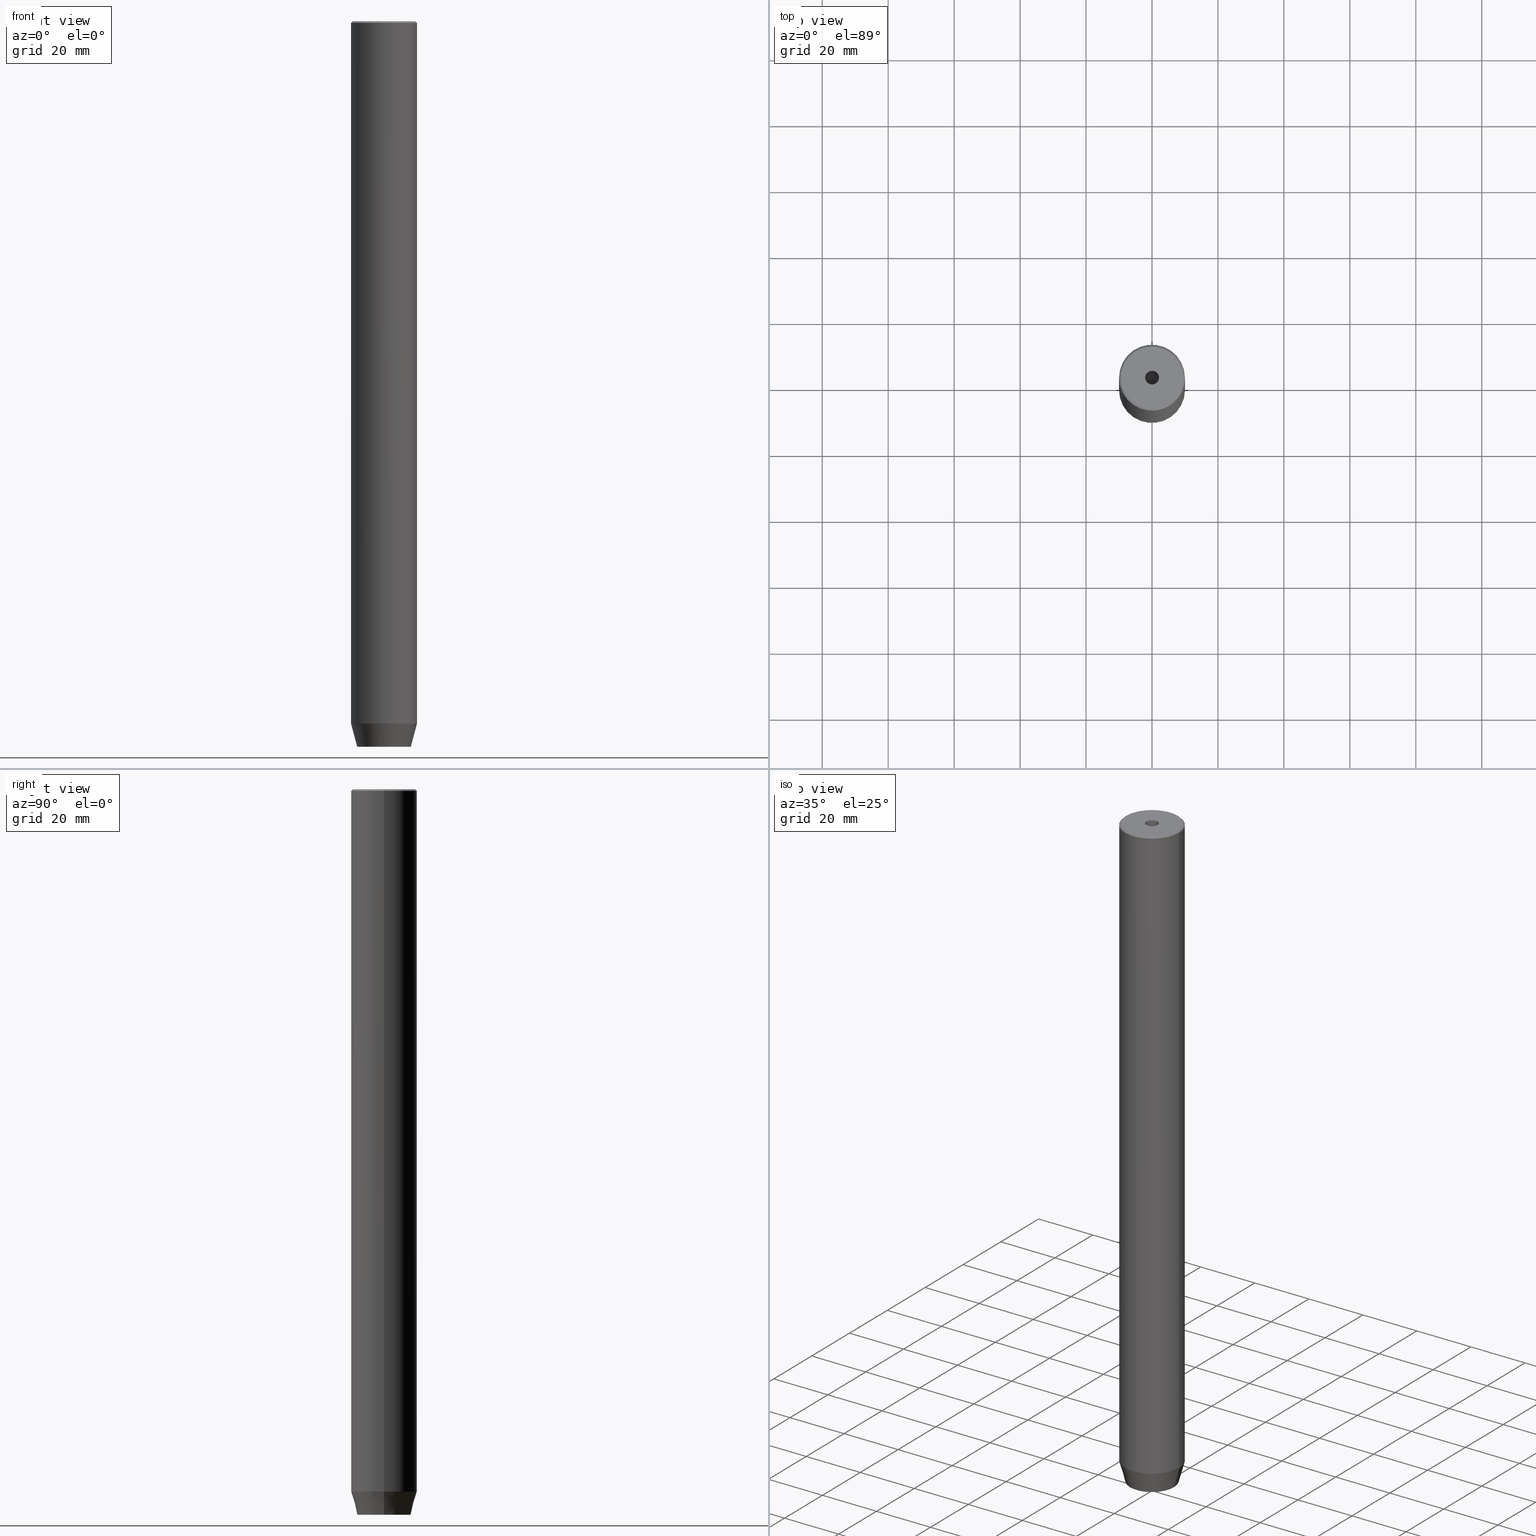
[diagram: canonical four-view strip — front | top / right | iso, engineering-drawing reading convention]
A machine part, canonical four-view strip (front | top / right | iso — engineering-drawing reading convention). The complete STEP part file that produces these views, byte-faithful:
ISO-10303-21;
HEADER;
FILE_DESCRIPTION (( 'STEP AP203' ),
    '1' );
FILE_NAME ('bc1d.STEP',
    '2024-01-02T19:03:26',
    ( '' ),
    ( '' ),
    'SwSTEP 2.0',
    'SolidWorks 2019',
    '' );
FILE_SCHEMA (( 'CONFIG_CONTROL_DESIGN' ));
ENDSEC;

DATA;
#1 = DIRECTION ( 'NONE',  ( 0.7071067811865230368, 8.659560562354633338E-17, -0.7071067811865721087 ) ) ;
#2 = MECHANICAL_CONTEXT ( 'NONE', #475, 'mechanical' ) ;
#3 = EDGE_CURVE ( 'NONE', #140, #437, #5, .T. ) ;
#4 = VERTEX_POINT ( 'NONE', #357 ) ;
#5 = LINE ( 'NONE', #407, #299 ) ;
#6 = APPLICATION_PROTOCOL_DEFINITION ( 'international standard', 'config_control_design', 1994, #365 ) ;
#7 = ADVANCED_FACE ( 'NONE', ( #464, #180 ), #12, .T. ) ;
#8 = ORIENTED_EDGE ( 'NONE', *, *, #367, .T. ) ;
#9 = CONICAL_SURFACE ( 'NONE', #338, 2.099999999999995648, 1.029744258676651647 ) ;
#10 = DIRECTION ( 'NONE',  ( -0.8660254037844385966, 0.5000000000000001110, 0.000000000000000000 ) ) ;
#11 = CONICAL_SURFACE ( 'NONE', #306, 10.00000000000000000, 0.2617993877991497409 ) ;
#12 = PLANE ( 'NONE',  #403 ) ;
#13 = CIRCLE ( 'NONE', #237, 2.099999999999998757 ) ;
#14 = AXIS2_PLACEMENT_3D ( 'NONE', #565, #454, #262 ) ;
#15 = CARTESIAN_POINT ( 'NONE',  ( 0.000000000000000000, 0.000000000000000000, -220.0000000000000000 ) ) ;
#16 = DIRECTION ( 'NONE',  ( 1.000000000000000000, 0.000000000000000000, 0.000000000000000000 ) ) ;
#17 = VERTEX_POINT ( 'NONE', #364 ) ;
#18 = EDGE_LOOP ( 'NONE', ( #190, #160, #452, #194 ) ) ;
#19 =( NAMED_UNIT ( * ) PLANE_ANGLE_UNIT ( ) SI_UNIT ( $, .RADIAN. ) );
#20 = DIRECTION ( 'NONE',  ( 1.000000000000000000, 0.000000000000000000, 0.000000000000000000 ) ) ;
#21 = VERTEX_POINT ( 'NONE', #259 ) ;
#22 = DIRECTION ( 'NONE',  ( -0.000000000000000000, -0.000000000000000000, 1.000000000000000000 ) ) ;
#23 = ORIENTED_EDGE ( 'NONE', *, *, #525, .T. ) ;
#24 = DIRECTION ( 'NONE',  ( -0.000000000000000000, -0.000000000000000000, 1.000000000000000000 ) ) ;
#25 = APPROVAL_ROLE ( '' ) ;
#26 = CC_DESIGN_PERSON_AND_ORGANIZATION_ASSIGNMENT ( #266, #99, ( #514 ) ) ;
#27 = FACE_OUTER_BOUND ( 'NONE', #450, .T. ) ;
#28 = SHAPE_DEFINITION_REPRESENTATION ( #130, #546 ) ;
#29 = ORIENTED_EDGE ( 'NONE', *, *, #272, .T. ) ;
#30 = CARTESIAN_POINT ( 'NONE',  ( 0.000000000000000000, 0.000000000000000000, 0.000000000000000000 ) ) ;
#31 = VECTOR ( 'NONE', #77, 1000.000000000000114 ) ;
#32 =( GEOMETRIC_REPRESENTATION_CONTEXT ( 3 ) GLOBAL_UNCERTAINTY_ASSIGNED_CONTEXT ( ( #240 ) ) GLOBAL_UNIT_ASSIGNED_CONTEXT ( ( #471, #19, #477 ) ) REPRESENTATION_CONTEXT ( 'NONE', 'WORKASPACE' ) );
#33 = CARTESIAN_POINT ( 'NONE',  ( 4.000000000000000000, -2.309401076758502480, -217.2000000000000171 ) ) ;
#34 = DESIGN_CONTEXT ( 'detailed design', #365, 'design' ) ;
#35 = PRODUCT_RELATED_PRODUCT_CATEGORY ( 'detail', '', ( #575 ) ) ;
#36 = DIRECTION ( 'NONE',  ( -0.8660254037844384856, 0.5000000000000002220, 0.000000000000000000 ) ) ;
#37 = ADVANCED_FACE ( 'NONE', ( #461 ), #551, .F. ) ;
#38 = FACE_OUTER_BOUND ( 'NONE', #18, .T. ) ;
#39 = AXIS2_PLACEMENT_3D ( 'NONE', #64, #228, #20 ) ;
#40 = LOCAL_TIME ( 20, 3, 26.00000000000000000, #381 ) ;
#41 = DIRECTION ( 'NONE',  ( -0.8660254037844384856, -0.5000000000000002220, 0.000000000000000000 ) ) ;
#42 = CARTESIAN_POINT ( 'NONE',  ( 0.000000000000000000, 0.000000000000000000, 0.000000000000000000 ) ) ;
#43 = EDGE_CURVE ( 'NONE', #179, #289, #142, .T. ) ;
#44 = CARTESIAN_POINT ( 'NONE',  ( 2.099999999999996980, 0.000000000000000000, 0.000000000000000000 ) ) ;
#45 = CIRCLE ( 'NONE', #504, 2.099999999999995648 ) ;
#46 = VERTEX_POINT ( 'NONE', #95 ) ;
#47 = PRODUCT_DEFINITION ( 'NEZN�M�', '', #514, #34 ) ;
#48 = VECTOR ( 'NONE', #512, 1000.000000000000000 ) ;
#49 = DIRECTION ( 'NONE',  ( 0.000000000000000000, 0.000000000000000000, -1.000000000000000000 ) ) ;
#50 = AXIS2_PLACEMENT_3D ( 'NONE', #482, #578, #246 ) ;
#51 = LOCAL_TIME ( 20, 3, 26.00000000000000000, #302 ) ;
#52 = PERSON_AND_ORGANIZATION ( #521, #275 ) ;
#53 = ORIENTED_EDGE ( 'NONE', *, *, #408, .T. ) ;
#54 = EDGE_CURVE ( 'NONE', #434, #17, #62, .T. ) ;
#55 = PERSON_AND_ORGANIZATION_ROLE ( 'design_owner' ) ;
#56 = CC_DESIGN_PERSON_AND_ORGANIZATION_ASSIGNMENT ( #466, #312, ( #514 ) ) ;
#57 = LINE ( 'NONE', #96, #468 ) ;
#58 = CARTESIAN_POINT ( 'NONE',  ( 0.000000000000000000, 0.000000000000000000, 0.000000000000000000 ) ) ;
#59 = DIRECTION ( 'NONE',  ( -0.5000000000000003331, -0.8660254037844385966, 0.000000000000000000 ) ) ;
#60 = CARTESIAN_POINT ( 'NONE',  ( 2.168404344971008868E-16, 4.618802153517006737, -220.0000000000000000 ) ) ;
#61 = AXIS2_PLACEMENT_3D ( 'NONE', #524, #108, #283 ) ;
#62 = LINE ( 'NONE', #416, #185 ) ;
#63 = LOCAL_TIME ( 20, 3, 26.00000000000000000, #258 ) ;
#64 = CARTESIAN_POINT ( 'NONE',  ( 0.000000000000000000, 0.000000000000000000, -220.0000000000000000 ) ) ;
#65 = DIRECTION ( 'NONE',  ( -0.000000000000000000, -0.000000000000000000, 1.000000000000000000 ) ) ;
#66 = CARTESIAN_POINT ( 'NONE',  ( -2.099999999999996980, 2.571758278209438013E-16, 0.000000000000000000 ) ) ;
#67 = ORIENTED_EDGE ( 'NONE', *, *, #408, .F. ) ;
#68 = CYLINDRICAL_SURFACE ( 'NONE', #417, 2.099999999999996980 ) ;
#69 = LINE ( 'NONE', #201, #225 ) ;
#70 = EDGE_LOOP ( 'NONE', ( #326, #411 ) ) ;
#71 = CALENDAR_DATE ( 2024, 2, 1 ) ;
#72 = ORIENTED_EDGE ( 'NONE', *, *, #303, .F. ) ;
#73 = VECTOR ( 'NONE', #496, 1000.000000000000000 ) ;
#74 = EDGE_LOOP ( 'NONE', ( #506, #125, #429 ) ) ;
#75 = EDGE_CURVE ( 'NONE', #558, #91, #254, .T. ) ;
#76 = CIRCLE ( 'NONE', #433, 9.500000000000008882 ) ;
#77 = DIRECTION ( 'NONE',  ( 0.8571673007021108903, 0.000000000000000000, 0.5150380749100565980 ) ) ;
#78 = EDGE_CURVE ( 'NONE', #236, #91, #488, .T. ) ;
#79 = DIRECTION ( 'NONE',  ( -1.000000000000000000, 0.000000000000000000, 0.000000000000000000 ) ) ;
#80 = CARTESIAN_POINT ( 'NONE',  ( 10.00000000000000000, 0.000000000000000000, -0.5000000000000265343 ) ) ;
#81 = LINE ( 'NONE', #447, #351 ) ;
#82 = DIRECTION ( 'NONE',  ( -0.000000000000000000, -0.000000000000000000, 1.000000000000000000 ) ) ;
#83 = ADVANCED_FACE ( 'NONE', ( #568 ), #9, .F. ) ;
#84 = CIRCLE ( 'NONE', #513, 8.124355652982130138 ) ;
#85 = LOCAL_TIME ( 20, 3, 26.00000000000000000, #199 ) ;
#86 = CARTESIAN_POINT ( 'NONE',  ( 4.000000000000000000, 2.309401076758503368, -217.2000000000000171 ) ) ;
#87 = ORIENTED_EDGE ( 'NONE', *, *, #54, .F. ) ;
#88 = ADVANCED_FACE ( 'NONE', ( #426 ), #68, .F. ) ;
#89 = VERTEX_POINT ( 'NONE', #572 ) ;
#90 = ORIENTED_EDGE ( 'NONE', *, *, #547, .F. ) ;
#91 = VERTEX_POINT ( 'NONE', #530 ) ;
#92 = ORIENTED_EDGE ( 'NONE', *, *, #3, .T. ) ;
#93 = ORIENTED_EDGE ( 'NONE', *, *, #318, .T. ) ;
#94 = EDGE_CURVE ( 'NONE', #140, #89, #171, .T. ) ;
#95 = CARTESIAN_POINT ( 'NONE',  ( 0.000000000000000000, 4.618802153517006737, -217.2000000000000171 ) ) ;
#96 = CARTESIAN_POINT ( 'NONE',  ( -2.000000000000000000, 3.464101615137754830, -217.2000000000000171 ) ) ;
#97 = CARTESIAN_POINT ( 'NONE',  ( 0.000000000000000000, 0.000000000000000000, -212.9999999999999716 ) ) ;
#98 = ORIENTED_EDGE ( 'NONE', *, *, #498, .F. ) ;
#99 = PERSON_AND_ORGANIZATION_ROLE ( 'creator' ) ;
#100 = DIRECTION ( 'NONE',  ( -1.000000000000000000, 0.000000000000000000, -0.000000000000000000 ) ) ;
#101 = ORIENTED_EDGE ( 'NONE', *, *, #221, .F. ) ;
#102 = AXIS2_PLACEMENT_3D ( 'NONE', #167, #79, #121 ) ;
#103 = ORIENTED_EDGE ( 'NONE', *, *, #576, .F. ) ;
#104 = DIRECTION ( 'NONE',  ( 1.000000000000000000, 0.000000000000000000, 0.000000000000000000 ) ) ;
#105 = ORIENTED_EDGE ( 'NONE', *, *, #449, .T. ) ;
#106 = DIRECTION ( 'NONE',  ( 0.8660254037844385966, -0.5000000000000001110, 0.000000000000000000 ) ) ;
#107 = APPROVAL_DATE_TIME ( #153, #166 ) ;
#108 = DIRECTION ( 'NONE',  ( -0.000000000000000000, -0.000000000000000000, 1.000000000000000000 ) ) ;
#109 = ORIENTED_EDGE ( 'NONE', *, *, #94, .F. ) ;
#110 = CARTESIAN_POINT ( 'NONE',  ( 2.000000000000000444, 3.464101615137754386, -217.2000000000000171 ) ) ;
#111 = VERTEX_POINT ( 'NONE', #439 ) ;
#112 = DIRECTION ( 'NONE',  ( -0.000000000000000000, -0.000000000000000000, 1.000000000000000000 ) ) ;
#113 = FACE_OUTER_BOUND ( 'NONE', #70, .T. ) ;
#114 = ORIENTED_EDGE ( 'NONE', *, *, #501, .T. ) ;
#115 = DIRECTION ( 'NONE',  ( 1.000000000000000000, 0.000000000000000000, 0.000000000000000000 ) ) ;
#116 = ADVANCED_FACE ( 'NONE', ( #536 ), #120, .F. ) ;
#117 = AXIS2_PLACEMENT_3D ( 'NONE', #451, #401, #241 ) ;
#118 = CARTESIAN_POINT ( 'NONE',  ( -10.00000000000000000, 1.224646799147353256E-15, 0.000000000000000000 ) ) ;
#119 = VERTEX_POINT ( 'NONE', #192 ) ;
#120 = PLANE ( 'NONE',  #465 ) ;
#121 = DIRECTION ( 'NONE',  ( 0.000000000000000000, 0.000000000000000000, 1.000000000000000000 ) ) ;
#122 = LINE ( 'NONE', #296, #582 ) ;
#123 = DIRECTION ( 'NONE',  ( 0.000000000000000000, 1.000000000000000000, 0.000000000000000000 ) ) ;
#124 = CARTESIAN_POINT ( 'NONE',  ( -2.000000000000000888, -3.464101615137754386, -217.2000000000000171 ) ) ;
#125 = ORIENTED_EDGE ( 'NONE', *, *, #221, .T. ) ;
#126 = CARTESIAN_POINT ( 'NONE',  ( -4.000000000000000000, -2.309401076758503368, -217.2000000000000171 ) ) ;
#127 = VECTOR ( 'NONE', #533, 1000.000000000000000 ) ;
#128 = CARTESIAN_POINT ( 'NONE',  ( -4.000000000000000000, -2.309401076758503368, -217.2000000000000171 ) ) ;
#129 = AXIS2_PLACEMENT_3D ( 'NONE', #324, #49, #16 ) ;
#130 = PRODUCT_DEFINITION_SHAPE ( 'NONE', 'NONE',  #47 ) ;
#131 = LINE ( 'NONE', #44, #73 ) ;
#132 = DIRECTION ( 'NONE',  ( 0.000000000000000000, 0.000000000000000000, -1.000000000000000000 ) ) ;
#133 = ADVANCED_FACE ( 'NONE', ( #376 ), #414, .F. ) ;
#134 = APPROVAL_ROLE ( '' ) ;
#135 = ADVANCED_FACE ( 'NONE', ( #548 ), #270, .F. ) ;
#136 = CIRCLE ( 'NONE', #117, 10.00000000000000000 ) ;
#137 = ORIENTED_EDGE ( 'NONE', *, *, #576, .T. ) ;
#138 = ORIENTED_EDGE ( 'NONE', *, *, #399, .T. ) ;
#139 = DIRECTION ( 'NONE',  ( 1.000000000000000000, 0.000000000000000000, 0.000000000000000000 ) ) ;
#140 = VERTEX_POINT ( 'NONE', #453 ) ;
#141 = CC_DESIGN_PERSON_AND_ORGANIZATION_ASSIGNMENT ( #52, #412, ( #317 ) ) ;
#142 = LINE ( 'NONE', #315, #48 ) ;
#143 = VERTEX_POINT ( 'NONE', #145 ) ;
#144 = DIRECTION ( 'NONE',  ( 1.000000000000000000, 0.000000000000000000, 0.000000000000000000 ) ) ;
#145 = CARTESIAN_POINT ( 'NONE',  ( -4.000000000000000000, -2.309401076758503368, -220.0000000000000000 ) ) ;
#146 = DIRECTION ( 'NONE',  ( 0.000000000000000000, 1.000000000000000000, 0.000000000000000000 ) ) ;
#147 = ADVANCED_FACE ( 'NONE', ( #222 ), #309, .F. ) ;
#148 = DIRECTION ( 'NONE',  ( -0.8660254037844384856, 0.5000000000000002220, 0.000000000000000000 ) ) ;
#149 = VERTEX_POINT ( 'NONE', #508 ) ;
#150 = LINE ( 'NONE', #110, #330 ) ;
#151 = AXIS2_PLACEMENT_3D ( 'NONE', #424, #22, #243 ) ;
#152 = EDGE_LOOP ( 'NONE', ( #109, #92, #310, #523 ) ) ;
#153 = DATE_AND_TIME ( #71, #40 ) ;
#154 = CARTESIAN_POINT ( 'NONE',  ( -2.000000000000000888, -3.464101615137754386, -220.0000000000000000 ) ) ;
#155 = EDGE_CURVE ( 'NONE', #437, #336, #136, .T. ) ;
#156 = EDGE_LOOP ( 'NONE', ( #311, #257, #537, #561 ) ) ;
#157 = DIRECTION ( 'NONE',  ( 0.5000000000000003331, -0.8660254037844385966, 0.000000000000000000 ) ) ;
#158 = LINE ( 'NONE', #560, #457 ) ;
#159 = AXIS2_PLACEMENT_3D ( 'NONE', #178, #181, #406 ) ;
#160 = ORIENTED_EDGE ( 'NONE', *, *, #359, .T. ) ;
#161 = CARTESIAN_POINT ( 'NONE',  ( 0.000000000000000000, 0.000000000000000000, 0.000000000000000000 ) ) ;
#162 = AXIS2_PLACEMENT_3D ( 'NONE', #231, #519, #100 ) ;
#163 = FACE_OUTER_BOUND ( 'NONE', #187, .T. ) ;
#164 = DIRECTION ( 'NONE',  ( 0.000000000000000000, -1.000000000000000000, 0.000000000000000000 ) ) ;
#165 = EDGE_CURVE ( 'NONE', #149, #236, #45, .T. ) ;
#166 = APPROVAL ( #531, 'NEUR�EN�' ) ;
#167 = CARTESIAN_POINT ( 'NONE',  ( -4.000000000000000000, 0.000000000000000000, -217.2000000000000171 ) ) ;
#168 = LINE ( 'NONE', #128, #186 ) ;
#169 = LINE ( 'NONE', #86, #316 ) ;
#170 = FACE_OUTER_BOUND ( 'NONE', #479, .T. ) ;
#171 = CIRCLE ( 'NONE', #391, 9.500000000000008882 ) ;
#172 = CONICAL_SURFACE ( 'NONE', #263, 2.099999999999995648, 1.029744258676651647 ) ;
#173 = DIRECTION ( 'NONE',  ( -0.000000000000000000, -0.000000000000000000, -1.000000000000000000 ) ) ;
#174 = EDGE_CURVE ( 'NONE', #319, #21, #84, .T. ) ;
#175 = EDGE_LOOP ( 'NONE', ( #425, #559, #8, #404, #93, #389 ) ) ;
#176 = CIRCLE ( 'NONE', #520, 2.099999999999995648 ) ;
#177 = DATE_TIME_ROLE ( 'creation_date' ) ;
#178 = CARTESIAN_POINT ( 'NONE',  ( -2.000000000000000000, 3.464101615137754830, -217.2000000000000171 ) ) ;
#179 = VERTEX_POINT ( 'NONE', #60 ) ;
#180 = FACE_OUTER_BOUND ( 'NONE', #528, .T. ) ;
#181 = DIRECTION ( 'NONE',  ( -0.5000000000000000000, 0.8660254037844387076, 0.000000000000000000 ) ) ;
#182 = VERTEX_POINT ( 'NONE', #33 ) ;
#183 = DIRECTION ( 'NONE',  ( -0.000000000000000000, -0.000000000000000000, 1.000000000000000000 ) ) ;
#184 = PERSON_AND_ORGANIZATION ( #521, #275 ) ;
#185 = VECTOR ( 'NONE', #146, 1000.000000000000000 ) ;
#186 = VECTOR ( 'NONE', #497, 1000.000000000000000 ) ;
#187 = EDGE_LOOP ( 'NONE', ( #53, #72, #87, #138 ) ) ;
#188 = CIRCLE ( 'NONE', #129, 10.00000000000000000 ) ;
#189 = FACE_OUTER_BOUND ( 'NONE', #175, .T. ) ;
#190 = ORIENTED_EDGE ( 'NONE', *, *, #213, .T. ) ;
#191 = EDGE_CURVE ( 'NONE', #182, #119, #422, .T. ) ;
#192 = CARTESIAN_POINT ( 'NONE',  ( 4.000000000000000000, -2.309401076758502480, -220.0000000000000000 ) ) ;
#193 = DIRECTION ( 'NONE',  ( -0.8571673007021108903, 1.049727191138616847E-16, 0.5150380749100565980 ) ) ;
#194 = ORIENTED_EDGE ( 'NONE', *, *, #272, .F. ) ;
#195 = ORIENTED_EDGE ( 'NONE', *, *, #388, .F. ) ;
#196 = DIRECTION ( 'NONE',  ( -0.000000000000000000, -0.000000000000000000, 1.000000000000000000 ) ) ;
#197 = VECTOR ( 'NONE', #298, 1000.000000000000000 ) ;
#198 = APPROVAL_PERSON_ORGANIZATION ( #360, #539, #234 ) ;
#199 = COORDINATED_UNIVERSAL_TIME_OFFSET ( 1, 0, .AHEAD. ) ;
#200 = EDGE_CURVE ( 'NONE', #111, #143, #463, .T. ) ;
#201 = CARTESIAN_POINT ( 'NONE',  ( 10.00000000000000000, 0.000000000000000000, 0.000000000000000000 ) ) ;
#202 = ORIENTED_EDGE ( 'NONE', *, *, #3, .F. ) ;
#203 = CARTESIAN_POINT ( 'NONE',  ( -4.000000000000000000, 2.309401076758503368, -220.0000000000000000 ) ) ;
#204 = ORIENTED_EDGE ( 'NONE', *, *, #501, .F. ) ;
#205 = AXIS2_PLACEMENT_3D ( 'NONE', #42, #393, #209 ) ;
#206 = DIRECTION ( 'NONE',  ( 0.2588190451025210170, 0.000000000000000000, 0.9659258262890680902 ) ) ;
#207 = PERSON_AND_ORGANIZATION_ROLE ( 'creator' ) ;
#208 = LINE ( 'NONE', #343, #127 ) ;
#209 = DIRECTION ( 'NONE',  ( -1.000000000000000000, 0.000000000000000000, 0.000000000000000000 ) ) ;
#210 = LINE ( 'NONE', #440, #197 ) ;
#211 = ADVANCED_FACE ( 'NONE', ( #189 ), #323, .T. ) ;
#212 = CARTESIAN_POINT ( 'NONE',  ( 4.336808689942017736E-16, -4.618802153517006737, -217.2000000000000171 ) ) ;
#213 = EDGE_CURVE ( 'NONE', #4, #375, #553, .T. ) ;
#214 = ORIENTED_EDGE ( 'NONE', *, *, #233, .F. ) ;
#215 = DATE_AND_TIME ( #308, #51 ) ;
#216 = EDGE_CURVE ( 'NONE', #21, #319, #358, .T. ) ;
#217 = AXIS2_PLACEMENT_3D ( 'NONE', #517, #183, #239 ) ;
#218 = CONICAL_SURFACE ( 'NONE', #261, 9.500000000000008882, 0.7853981633974136400 ) ;
#219 = DATE_AND_TIME ( #366, #63 ) ;
#220 = ORIENTED_EDGE ( 'NONE', *, *, #470, .T. ) ;
#221 = EDGE_CURVE ( 'NONE', #567, #236, #321, .T. ) ;
#222 = FACE_OUTER_BOUND ( 'NONE', #307, .T. ) ;
#223 = ORIENTED_EDGE ( 'NONE', *, *, #191, .T. ) ;
#224 = DIRECTION ( 'NONE',  ( 0.8660254037844384856, -0.5000000000000002220, 0.000000000000000000 ) ) ;
#225 = VECTOR ( 'NONE', #566, 1000.000000000000000 ) ;
#226 = ADVANCED_FACE ( 'NONE', ( #377 ), #483, .T. ) ;
#227 = CARTESIAN_POINT ( 'NONE',  ( 0.000000000000000000, 8.124355652982130138, -220.0000000000000000 ) ) ;
#228 = DIRECTION ( 'NONE',  ( -0.000000000000000000, -0.000000000000000000, 1.000000000000000000 ) ) ;
#229 = CARTESIAN_POINT ( 'NONE',  ( 4.000000000000000000, 2.309401076758503368, -217.2000000000000171 ) ) ;
#230 = ORIENTED_EDGE ( 'NONE', *, *, #155, .F. ) ;
#231 = CARTESIAN_POINT ( 'NONE',  ( 0.000000000000000000, 0.000000000000000000, -217.2000000000000171 ) ) ;
#232 = DIRECTION ( 'NONE',  ( -0.000000000000000000, -0.000000000000000000, 1.000000000000000000 ) ) ;
#233 = EDGE_CURVE ( 'NONE', #91, #558, #13, .T. ) ;
#234 = APPROVAL_ROLE ( '' ) ;
#235 = DIRECTION ( 'NONE',  ( -0.000000000000000000, -0.000000000000000000, 1.000000000000000000 ) ) ;
#236 = VERTEX_POINT ( 'NONE', #432 ) ;
#237 = AXIS2_PLACEMENT_3D ( 'NONE', #280, #474, #427 ) ;
#238 = EDGE_LOOP ( 'NONE', ( #195, #67, #459, #103, #334, #325 ) ) ;
#239 = DIRECTION ( 'NONE',  ( 1.000000000000000000, 0.000000000000000000, 0.000000000000000000 ) ) ;
#240 = UNCERTAINTY_MEASURE_WITH_UNIT (LENGTH_MEASURE( 1.000000000000000082E-05 ), #471, 'distance_accuracy_value', 'NONE');
#241 = DIRECTION ( 'NONE',  ( 1.000000000000000000, 0.000000000000000000, 0.000000000000000000 ) ) ;
#242 = ORIENTED_EDGE ( 'NONE', *, *, #155, .T. ) ;
#243 = DIRECTION ( 'NONE',  ( 1.000000000000000000, 0.000000000000000000, 0.000000000000000000 ) ) ;
#244 = CALENDAR_DATE ( 2024, 2, 1 ) ;
#245 = ORIENTED_EDGE ( 'NONE', *, *, #318, .F. ) ;
#246 = DIRECTION ( 'NONE',  ( 1.000000000000000000, 0.000000000000000000, 0.000000000000000000 ) ) ;
#247 = DIRECTION ( 'NONE',  ( 1.000000000000000000, 0.000000000000000000, -0.000000000000000000 ) ) ;
#248 = PERSON_AND_ORGANIZATION ( #521, #275 ) ;
#249 = VECTOR ( 'NONE', #478, 1000.000000000000000 ) ;
#250 = DIRECTION ( 'NONE',  ( 0.8660254037844384856, 0.5000000000000002220, 0.000000000000000000 ) ) ;
#251 = FACE_OUTER_BOUND ( 'NONE', #152, .T. ) ;
#252 = COORDINATED_UNIVERSAL_TIME_OFFSET ( 1, 0, .AHEAD. ) ;
#253 = LINE ( 'NONE', #212, #397 ) ;
#254 = CIRCLE ( 'NONE', #217, 2.099999999999998757 ) ;
#255 = VECTOR ( 'NONE', #291, 1000.000000000000000 ) ;
#256 = EDGE_LOOP ( 'NONE', ( #490, #322, #486, #23 ) ) ;
#257 = ORIENTED_EDGE ( 'NONE', *, *, #165, .F. ) ;
#258 = COORDINATED_UNIVERSAL_TIME_OFFSET ( 1, 0, .AHEAD. ) ;
#259 = CARTESIAN_POINT ( 'NONE',  ( 8.124355652982130138, 0.000000000000000000, -220.0000000000000000 ) ) ;
#260 = ORIENTED_EDGE ( 'NONE', *, *, #174, .F. ) ;
#261 = AXIS2_PLACEMENT_3D ( 'NONE', #493, #132, #304 ) ;
#262 = DIRECTION ( 'NONE',  ( 1.000000000000000000, 0.000000000000000000, 0.000000000000000000 ) ) ;
#263 = AXIS2_PLACEMENT_3D ( 'NONE', #354, #82, #400 ) ;
#264 = CARTESIAN_POINT ( 'NONE',  ( -6.432287649943602629E-15, 0.000000000000000000, -26.26180729995787999 ) ) ;
#265 = ORIENTED_EDGE ( 'NONE', *, *, #525, .F. ) ;
#266 = PERSON_AND_ORGANIZATION ( #521, #275 ) ;
#267 = ADVANCED_FACE ( 'NONE', ( #27 ), #333, .T. ) ;
#268 = PERSON_AND_ORGANIZATION ( #521, #275 ) ;
#269 = DIRECTION ( 'NONE',  ( 0.8660254037844387076, 0.5000000000000001110, 0.000000000000000000 ) ) ;
#270 = CYLINDRICAL_SURFACE ( 'NONE', #288, 2.099999999999996980 ) ;
#271 = ORIENTED_EDGE ( 'NONE', *, *, #216, .F. ) ;
#272 = EDGE_CURVE ( 'NONE', #4, #437, #69, .T. ) ;
#273 = DIRECTION ( 'NONE',  ( 0.000000000000000000, 0.000000000000000000, -1.000000000000000000 ) ) ;
#274 = AXIS2_PLACEMENT_3D ( 'NONE', #436, #554, #144 ) ;
#275 = ORGANIZATION ( 'NEUR�EN�', 'NEUR�EN�', '' ) ;
#276 = ORIENTED_EDGE ( 'NONE', *, *, #388, .T. ) ;
#277 = EDGE_LOOP ( 'NONE', ( #421, #105, #585, #510 ) ) ;
#278 = DIRECTION ( 'NONE',  ( 1.000000000000000000, 0.000000000000000000, 0.000000000000000000 ) ) ;
#279 = DATE_AND_TIME ( #244, #85 ) ;
#280 = CARTESIAN_POINT ( 'NONE',  ( 0.000000000000000000, 0.000000000000000000, -1.990051048614449116E-16 ) ) ;
#281 = EDGE_LOOP ( 'NONE', ( #101, #368, #480 ) ) ;
#282 = DIRECTION ( 'NONE',  ( 1.000000000000000000, 0.000000000000000000, 0.000000000000000000 ) ) ;
#283 = DIRECTION ( 'NONE',  ( 1.000000000000000000, 0.000000000000000000, 0.000000000000000000 ) ) ;
#284 = ORIENTED_EDGE ( 'NONE', *, *, #303, .T. ) ;
#285 = CARTESIAN_POINT ( 'NONE',  ( 0.000000000000000000, 0.000000000000000000, -25.00000000000000000 ) ) ;
#286 = DATE_TIME_ROLE ( 'classification_date' ) ;
#287 = PLANE ( 'NONE',  #50 ) ;
#288 = AXIS2_PLACEMENT_3D ( 'NONE', #58, #410, #139 ) ;
#289 = VERTEX_POINT ( 'NONE', #335 ) ;
#290 = ADVANCED_FACE ( 'NONE', ( #527, #113 ), #287, .T. ) ;
#291 = DIRECTION ( 'NONE',  ( -0.000000000000000000, -0.000000000000000000, 1.000000000000000000 ) ) ;
#292 = CC_DESIGN_DATE_AND_TIME_ASSIGNMENT ( #215, #177, ( #47 ) ) ;
#293 = CARTESIAN_POINT ( 'NONE',  ( 4.000000000000000000, 0.000000000000000000, -217.2000000000000171 ) ) ;
#294 = VERTEX_POINT ( 'NONE', #203 ) ;
#295 = EDGE_CURVE ( 'NONE', #21, #4, #438, .T. ) ;
#296 = CARTESIAN_POINT ( 'NONE',  ( 4.000000000000000000, 0.000000000000000000, -217.2000000000000171 ) ) ;
#297 = PLANE ( 'NONE',  #102 ) ;
#298 = DIRECTION ( 'NONE',  ( -0.000000000000000000, -0.000000000000000000, -1.000000000000000000 ) ) ;
#299 = VECTOR ( 'NONE', #1, 1000.000000000000000 ) ;
#300 = AXIS2_PLACEMENT_3D ( 'NONE', #487, #383, #526 ) ;
#301 = APPROVAL_PERSON_ORGANIZATION ( #184, #492, #134 ) ;
#302 = COORDINATED_UNIVERSAL_TIME_OFFSET ( 1, 0, .AHEAD. ) ;
#303 = EDGE_CURVE ( 'NONE', #17, #294, #210, .T. ) ;
#304 = DIRECTION ( 'NONE',  ( -1.000000000000000000, 0.000000000000000000, 0.000000000000000000 ) ) ;
#305 = ORIENTED_EDGE ( 'NONE', *, *, #449, .F. ) ;
#306 = AXIS2_PLACEMENT_3D ( 'NONE', #446, #499, #444 ) ;
#307 = EDGE_LOOP ( 'NONE', ( #378, #265, #550, #529 ) ) ;
#308 = CALENDAR_DATE ( 2024, 2, 1 ) ;
#309 = PLANE ( 'NONE',  #545 ) ;
#310 = ORIENTED_EDGE ( 'NONE', *, *, #573, .F. ) ;
#311 = ORIENTED_EDGE ( 'NONE', *, *, #78, .F. ) ;
#312 = PERSON_AND_ORGANIZATION_ROLE ( 'design_supplier' ) ;
#313 = ADVANCED_FACE ( 'NONE', ( #352 ), #542, .F. ) ;
#314 = ORIENTED_EDGE ( 'NONE', *, *, #359, .F. ) ;
#315 = CARTESIAN_POINT ( 'NONE',  ( 2.000000000000000444, 3.464101615137754386, -220.0000000000000000 ) ) ;
#316 = VECTOR ( 'NONE', #349, 1000.000000000000000 ) ;
#317 = SECURITY_CLASSIFICATION ( '', '', #328 ) ;
#318 = EDGE_CURVE ( 'NONE', #455, #434, #538, .T. ) ;
#319 = VERTEX_POINT ( 'NONE', #491 ) ;
#320 = APPROVAL_DATE_TIME ( #219, #539 ) ;
#321 = LINE ( 'NONE', #385, #562 ) ;
#322 = ORIENTED_EDGE ( 'NONE', *, *, #191, .F. ) ;
#323 = PLANE ( 'NONE',  #162 ) ;
#324 = CARTESIAN_POINT ( 'NONE',  ( 0.000000000000000000, 0.000000000000000000, -0.5000000000000265343 ) ) ;
#325 = ORIENTED_EDGE ( 'NONE', *, *, #43, .F. ) ;
#326 = ORIENTED_EDGE ( 'NONE', *, *, #498, .T. ) ;
#327 = DIRECTION ( 'NONE',  ( -0.000000000000000000, -0.000000000000000000, 1.000000000000000000 ) ) ;
#328 = SECURITY_CLASSIFICATION_LEVEL ( 'unclassified' ) ;
#329 = ADVANCED_FACE ( 'NONE', ( #494 ), #11, .T. ) ;
#330 = VECTOR ( 'NONE', #106, 1000.000000000000000 ) ;
#331 = CC_DESIGN_APPROVAL ( #492, ( #47 ) ) ;
#332 = ORIENTED_EDGE ( 'NONE', *, *, #543, .F. ) ;
#333 = CYLINDRICAL_SURFACE ( 'NONE', #61, 10.00000000000000000 ) ;
#334 = ORIENTED_EDGE ( 'NONE', *, *, #348, .F. ) ;
#335 = CARTESIAN_POINT ( 'NONE',  ( 4.000000000000000000, 2.309401076758503368, -220.0000000000000000 ) ) ;
#336 = VERTEX_POINT ( 'NONE', #574 ) ;
#337 = CARTESIAN_POINT ( 'NONE',  ( 4.000000000000000000, 0.000000000000000000, -220.0000000000000000 ) ) ;
#338 = AXIS2_PLACEMENT_3D ( 'NONE', #285, #24, #278 ) ;
#339 = DIRECTION ( 'NONE',  ( -0.7071067811865230368, 0.000000000000000000, -0.7071067811865721087 ) ) ;
#340 = VECTOR ( 'NONE', #36, 1000.000000000000114 ) ;
#341 = VECTOR ( 'NONE', #458, 1000.000000000000114 ) ;
#342 = EDGE_CURVE ( 'NONE', #182, #455, #81, .T. ) ;
#343 = CARTESIAN_POINT ( 'NONE',  ( 0.000000000000000000, 4.618802153517006737, -217.2000000000000171 ) ) ;
#344 = CARTESIAN_POINT ( 'NONE',  ( -10.00000000000000000, 1.224646799147353256E-15, -212.9999999999999716 ) ) ;
#345 = DATE_AND_TIME ( #445, #442 ) ;
#346 = LINE ( 'NONE', #353, #392 ) ;
#347 = LINE ( 'NONE', #540, #448 ) ;
#348 = EDGE_CURVE ( 'NONE', #289, #119, #569, .T. ) ;
#349 = DIRECTION ( 'NONE',  ( -0.000000000000000000, -0.000000000000000000, -1.000000000000000000 ) ) ;
#350 = CC_DESIGN_PERSON_AND_ORGANIZATION_ASSIGNMENT ( #268, #55, ( #575 ) ) ;
#351 = VECTOR ( 'NONE', #41, 1000.000000000000114 ) ;
#352 = FACE_OUTER_BOUND ( 'NONE', #509, .T. ) ;
#353 = CARTESIAN_POINT ( 'NONE',  ( -4.000000000000000000, 0.000000000000000000, -220.0000000000000000 ) ) ;
#354 = CARTESIAN_POINT ( 'NONE',  ( 0.000000000000000000, 0.000000000000000000, -25.00000000000000000 ) ) ;
#355 = ORIENTED_EDGE ( 'NONE', *, *, #200, .T. ) ;
#356 = EDGE_CURVE ( 'NONE', #46, #179, #208, .T. ) ;
#357 = CARTESIAN_POINT ( 'NONE',  ( 10.00000000000000000, 0.000000000000000000, -212.9999999999999716 ) ) ;
#358 = CIRCLE ( 'NONE', #39, 8.124355652982130138 ) ;
#359 = EDGE_CURVE ( 'NONE', #375, #336, #541, .T. ) ;
#360 = PERSON_AND_ORGANIZATION ( #521, #275 ) ;
#361 = CARTESIAN_POINT ( 'NONE',  ( 2.099999999999995648, 0.000000000000000000, -25.00000000000000000 ) ) ;
#362 = CARTESIAN_POINT ( 'NONE',  ( 2.000000000000000444, 3.464101615137754386, -217.2000000000000171 ) ) ;
#363 = ORIENTED_EDGE ( 'NONE', *, *, #295, .T. ) ;
#364 = CARTESIAN_POINT ( 'NONE',  ( -4.000000000000000000, 2.309401076758503368, -217.2000000000000171 ) ) ;
#365 = APPLICATION_CONTEXT ( 'configuration controlled 3d designs of mechanical parts and assemblies' ) ;
#366 = CALENDAR_DATE ( 2024, 2, 1 ) ;
#367 = EDGE_CURVE ( 'NONE', #564, #182, #122, .T. ) ;
#368 = ORIENTED_EDGE ( 'NONE', *, *, #518, .T. ) ;
#369 = VECTOR ( 'NONE', #206, 1000.000000000000114 ) ;
#370 = DIRECTION ( 'NONE',  ( -0.000000000000000000, -0.000000000000000000, 1.000000000000000000 ) ) ;
#371 = CARTESIAN_POINT ( 'NONE',  ( 2.099999999999998757, 0.000000000000000000, -1.990051048614449116E-16 ) ) ;
#372 = EDGE_LOOP ( 'NONE', ( #515, #415, #571, #332 ) ) ;
#373 = CARTESIAN_POINT ( 'NONE',  ( -2.000000000000000888, -3.464101615137754386, -217.2000000000000171 ) ) ;
#374 = CARTESIAN_POINT ( 'NONE',  ( 2.000000000000000888, -3.464101615137754386, -220.0000000000000000 ) ) ;
#375 = VERTEX_POINT ( 'NONE', #577 ) ;
#376 = FACE_OUTER_BOUND ( 'NONE', #549, .T. ) ;
#377 = FACE_OUTER_BOUND ( 'NONE', #584, .T. ) ;
#378 = ORIENTED_EDGE ( 'NONE', *, *, #43, .T. ) ;
#379 = DIRECTION ( 'NONE',  ( 1.000000000000000000, 0.000000000000000000, 0.000000000000000000 ) ) ;
#380 = CARTESIAN_POINT ( 'NONE',  ( 0.000000000000000000, 0.000000000000000000, 0.000000000000000000 ) ) ;
#381 = COORDINATED_UNIVERSAL_TIME_OFFSET ( 1, 0, .AHEAD. ) ;
#382 = AXIS2_PLACEMENT_3D ( 'NONE', #580, #157, #250 ) ;
#383 = DIRECTION ( 'NONE',  ( -0.000000000000000000, -0.000000000000000000, 1.000000000000000000 ) ) ;
#384 = DIRECTION ( 'NONE',  ( 1.000000000000000000, 0.000000000000000000, 0.000000000000000000 ) ) ;
#385 = CARTESIAN_POINT ( 'NONE',  ( -2.099999999999995648, 2.571758278209436040E-16, -25.00000000000000000 ) ) ;
#386 = ORIENTED_EDGE ( 'NONE', *, *, #399, .F. ) ;
#387 = PERSON_AND_ORGANIZATION ( #521, #275 ) ;
#388 = EDGE_CURVE ( 'NONE', #294, #179, #347, .T. ) ;
#389 = ORIENTED_EDGE ( 'NONE', *, *, #54, .T. ) ;
#390 = CARTESIAN_POINT ( 'NONE',  ( 10.00000000000000000, 0.000000000000000000, -212.9999999999999716 ) ) ;
#391 = AXIS2_PLACEMENT_3D ( 'NONE', #161, #327, #115 ) ;
#392 = VECTOR ( 'NONE', #123, 1000.000000000000000 ) ;
#393 = DIRECTION ( 'NONE',  ( 0.000000000000000000, 0.000000000000000000, -1.000000000000000000 ) ) ;
#394 = DIRECTION ( 'NONE',  ( 0.000000000000000000, -1.000000000000000000, 0.000000000000000000 ) ) ;
#395 = DIRECTION ( 'NONE',  ( 0.8660254037844387076, 0.5000000000000001110, 0.000000000000000000 ) ) ;
#396 = CC_DESIGN_PERSON_AND_ORGANIZATION_ASSIGNMENT ( #248, #207, ( #47 ) ) ;
#397 = VECTOR ( 'NONE', #173, 1000.000000000000000 ) ;
#398 = CC_DESIGN_APPROVAL ( #539, ( #514 ) ) ;
#399 = EDGE_CURVE ( 'NONE', #434, #143, #168, .T. ) ;
#400 = DIRECTION ( 'NONE',  ( 1.000000000000000000, 0.000000000000000000, 0.000000000000000000 ) ) ;
#401 = DIRECTION ( 'NONE',  ( 0.000000000000000000, 0.000000000000000000, -1.000000000000000000 ) ) ;
#402 = ADVANCED_FACE ( 'NONE', ( #251 ), #467, .T. ) ;
#403 = AXIS2_PLACEMENT_3D ( 'NONE', #227, #273, #456 ) ;
#404 = ORIENTED_EDGE ( 'NONE', *, *, #342, .T. ) ;
#405 = VECTOR ( 'NONE', #164, 1000.000000000000000 ) ;
#406 = DIRECTION ( 'NONE',  ( -0.8660254037844385966, -0.4999999999999999445, 0.000000000000000000 ) ) ;
#407 = CARTESIAN_POINT ( 'NONE',  ( 9.500000000000008882, 1.163414459189986668E-15, 0.000000000000000000 ) ) ;
#408 = EDGE_CURVE ( 'NONE', #143, #294, #346, .T. ) ;
#409 = APPLICATION_PROTOCOL_DEFINITION ( 'international standard', 'config_control_design', 1994, #475 ) ;
#410 = DIRECTION ( 'NONE',  ( -0.000000000000000000, -0.000000000000000000, 1.000000000000000000 ) ) ;
#411 = ORIENTED_EDGE ( 'NONE', *, *, #94, .T. ) ;
#412 = PERSON_AND_ORGANIZATION_ROLE ( 'classification_officer' ) ;
#413 = LINE ( 'NONE', #374, #341 ) ;
#414 = PLANE ( 'NONE',  #159 ) ;
#415 = ORIENTED_EDGE ( 'NONE', *, *, #78, .T. ) ;
#416 = CARTESIAN_POINT ( 'NONE',  ( -4.000000000000000000, 0.000000000000000000, -217.2000000000000171 ) ) ;
#417 = AXIS2_PLACEMENT_3D ( 'NONE', #380, #232, #384 ) ;
#418 = VECTOR ( 'NONE', #148, 1000.000000000000114 ) ;
#419 = CARTESIAN_POINT ( 'NONE',  ( 4.000000000000000000, -2.309401076758502480, -217.2000000000000171 ) ) ;
#420 = EDGE_LOOP ( 'NONE', ( #460, #214 ) ) ;
#421 = ORIENTED_EDGE ( 'NONE', *, *, #216, .T. ) ;
#422 = LINE ( 'NONE', #419, #249 ) ;
#423 = ORIENTED_EDGE ( 'NONE', *, *, #581, .F. ) ;
#424 = CARTESIAN_POINT ( 'NONE',  ( 0.000000000000000000, 0.000000000000000000, 0.000000000000000000 ) ) ;
#425 = ORIENTED_EDGE ( 'NONE', *, *, #581, .T. ) ;
#426 = FACE_OUTER_BOUND ( 'NONE', #156, .T. ) ;
#427 = DIRECTION ( 'NONE',  ( 1.000000000000000000, 0.000000000000000000, 0.000000000000000000 ) ) ;
#428 = CARTESIAN_POINT ( 'NONE',  ( 4.336808689942017736E-16, -4.618802153517006737, -217.2000000000000171 ) ) ;
#429 = ORIENTED_EDGE ( 'NONE', *, *, #443, .T. ) ;
#430 = ADVANCED_FACE ( 'NONE', ( #163 ), #297, .F. ) ;
#431 = AXIS2_PLACEMENT_3D ( 'NONE', #373, #59, #224 ) ;
#432 = CARTESIAN_POINT ( 'NONE',  ( -2.099999999999995648, 2.571758278209436040E-16, -25.00000000000000000 ) ) ;
#433 = AXIS2_PLACEMENT_3D ( 'NONE', #30, #196, #282 ) ;
#434 = VERTEX_POINT ( 'NONE', #126 ) ;
#435 = ADVANCED_FACE ( 'NONE', ( #170 ), #218, .T. ) ;
#436 = CARTESIAN_POINT ( 'NONE',  ( 0.000000000000000000, 0.000000000000000000, -212.9999999999999716 ) ) ;
#437 = VERTEX_POINT ( 'NONE', #80 ) ;
#438 = LINE ( 'NONE', #390, #369 ) ;
#439 = CARTESIAN_POINT ( 'NONE',  ( 4.336808689942017736E-16, -4.618802153517006737, -220.0000000000000000 ) ) ;
#440 = CARTESIAN_POINT ( 'NONE',  ( -4.000000000000000000, 2.309401076758503368, -217.2000000000000171 ) ) ;
#441 = AXIS2_PLACEMENT_3D ( 'NONE', #97, #522, #104 ) ;
#442 = LOCAL_TIME ( 20, 3, 26.00000000000000000, #252 ) ;
#443 = EDGE_CURVE ( 'NONE', #236, #149, #176, .T. ) ;
#444 = DIRECTION ( 'NONE',  ( 1.000000000000000000, 0.000000000000000000, 0.000000000000000000 ) ) ;
#445 = CALENDAR_DATE ( 2024, 2, 1 ) ;
#446 = CARTESIAN_POINT ( 'NONE',  ( 0.000000000000000000, 0.000000000000000000, -212.9999999999999716 ) ) ;
#447 = CARTESIAN_POINT ( 'NONE',  ( 2.000000000000000888, -3.464101615137754386, -217.2000000000000171 ) ) ;
#448 = VECTOR ( 'NONE', #395, 999.9999999999998863 ) ;
#449 = EDGE_CURVE ( 'NONE', #319, #375, #570, .T. ) ;
#450 = EDGE_LOOP ( 'NONE', ( #314, #114, #29, #242 ) ) ;
#451 = CARTESIAN_POINT ( 'NONE',  ( 0.000000000000000000, 0.000000000000000000, -0.5000000000000265343 ) ) ;
#452 = ORIENTED_EDGE ( 'NONE', *, *, #573, .T. ) ;
#453 = CARTESIAN_POINT ( 'NONE',  ( 9.500000000000008882, 1.194030629168669864E-15, 0.000000000000000000 ) ) ;
#454 = DIRECTION ( 'NONE',  ( 0.000000000000000000, 0.000000000000000000, 1.000000000000000000 ) ) ;
#455 = VERTEX_POINT ( 'NONE', #428 ) ;
#456 = DIRECTION ( 'NONE',  ( -1.000000000000000000, 0.000000000000000000, -0.000000000000000000 ) ) ;
#457 = VECTOR ( 'NONE', #339, 1000.000000000000000 ) ;
#458 = DIRECTION ( 'NONE',  ( -0.8660254037844384856, -0.5000000000000002220, 0.000000000000000000 ) ) ;
#459 = ORIENTED_EDGE ( 'NONE', *, *, #200, .F. ) ;
#460 = ORIENTED_EDGE ( 'NONE', *, *, #75, .F. ) ;
#461 = FACE_OUTER_BOUND ( 'NONE', #587, .T. ) ;
#462 = ADVANCED_FACE ( 'NONE', ( #38 ), #472, .T. ) ;
#463 = LINE ( 'NONE', #154, #418 ) ;
#464 = FACE_BOUND ( 'NONE', #238, .T. ) ;
#465 = AXIS2_PLACEMENT_3D ( 'NONE', #293, #247, #473 ) ;
#466 = PERSON_AND_ORGANIZATION ( #521, #275 ) ;
#467 = CONICAL_SURFACE ( 'NONE', #205, 9.500000000000008882, 0.7853981633974136400 ) ;
#468 = VECTOR ( 'NONE', #269, 999.9999999999998863 ) ;
#469 = CARTESIAN_POINT ( 'NONE',  ( 0.000000000000000000, 0.000000000000000000, -25.00000000000000000 ) ) ;
#470 = EDGE_CURVE ( 'NONE', #89, #336, #158, .T. ) ;
#471 =( LENGTH_UNIT ( ) NAMED_UNIT ( * ) SI_UNIT ( .MILLI., .METRE. ) );
#472 = CYLINDRICAL_SURFACE ( 'NONE', #151, 10.00000000000000000 ) ;
#473 = DIRECTION ( 'NONE',  ( -0.000000000000000000, 0.000000000000000000, -1.000000000000000000 ) ) ;
#474 = DIRECTION ( 'NONE',  ( -0.000000000000000000, -0.000000000000000000, 1.000000000000000000 ) ) ;
#475 = APPLICATION_CONTEXT ( 'configuration controlled 3d designs of mechanical parts and assemblies' ) ;
#476 = APPROVAL_STATUS ( 'not_yet_approved' ) ;
#477 =( NAMED_UNIT ( * ) SI_UNIT ( $, .STERADIAN. ) SOLID_ANGLE_UNIT ( ) );
#478 = DIRECTION ( 'NONE',  ( -0.000000000000000000, -0.000000000000000000, -1.000000000000000000 ) ) ;
#479 = EDGE_LOOP ( 'NONE', ( #202, #98, #220, #230 ) ) ;
#480 = ORIENTED_EDGE ( 'NONE', *, *, #165, .T. ) ;
#481 = EDGE_CURVE ( 'NONE', #46, #564, #150, .T. ) ;
#482 = CARTESIAN_POINT ( 'NONE',  ( 0.000000000000000000, 0.000000000000000000, 0.000000000000000000 ) ) ;
#483 = CONICAL_SURFACE ( 'NONE', #441, 10.00000000000000000, 0.2617993877991497409 ) ;
#484 = ORIENTED_EDGE ( 'NONE', *, *, #342, .F. ) ;
#485 = DIRECTION ( 'NONE',  ( -0.2588190451025210170, 3.169619151431768639E-17, 0.9659258262890680902 ) ) ;
#486 = ORIENTED_EDGE ( 'NONE', *, *, #367, .F. ) ;
#487 = CARTESIAN_POINT ( 'NONE',  ( 0.000000000000000000, 0.000000000000000000, -212.9999999999999716 ) ) ;
#488 = LINE ( 'NONE', #66, #532 ) ;
#489 = CARTESIAN_POINT ( 'NONE',  ( 0.000000000000000000, 0.000000000000000000, -25.00000000000000000 ) ) ;
#490 = ORIENTED_EDGE ( 'NONE', *, *, #348, .T. ) ;
#491 = CARTESIAN_POINT ( 'NONE',  ( -8.124355652982130138, 1.109796706851640162E-15, -220.0000000000000000 ) ) ;
#492 = APPROVAL ( #544, 'NEUR�EN�' ) ;
#493 = CARTESIAN_POINT ( 'NONE',  ( 0.000000000000000000, 0.000000000000000000, 0.000000000000000000 ) ) ;
#494 = FACE_OUTER_BOUND ( 'NONE', #277, .T. ) ;
#495 = CIRCLE ( 'NONE', #300, 10.00000000000000000 ) ;
#496 = DIRECTION ( 'NONE',  ( -0.000000000000000000, -0.000000000000000000, 1.000000000000000000 ) ) ;
#497 = DIRECTION ( 'NONE',  ( -0.000000000000000000, -0.000000000000000000, -1.000000000000000000 ) ) ;
#498 = EDGE_CURVE ( 'NONE', #89, #140, #76, .T. ) ;
#499 = DIRECTION ( 'NONE',  ( -0.000000000000000000, -0.000000000000000000, 1.000000000000000000 ) ) ;
#500 = FACE_OUTER_BOUND ( 'NONE', #74, .T. ) ;
#501 = EDGE_CURVE ( 'NONE', #375, #4, #495, .T. ) ;
#502 = MANIFOLD_SOLID_BREP ( 'Vrt�k z�vitn�ku pro M5 z�vit1', #586 ) ;
#503 = CC_DESIGN_DATE_AND_TIME_ASSIGNMENT ( #279, #286, ( #317 ) ) ;
#504 = AXIS2_PLACEMENT_3D ( 'NONE', #469, #235, #516 ) ;
#505 = CC_DESIGN_SECURITY_CLASSIFICATION ( #317, ( #514 ) ) ;
#506 = ORIENTED_EDGE ( 'NONE', *, *, #518, .F. ) ;
#507 = APPROVAL_DATE_TIME ( #345, #492 ) ;
#508 = CARTESIAN_POINT ( 'NONE',  ( 2.099999999999995648, 0.000000000000000000, -25.00000000000000000 ) ) ;
#509 = EDGE_LOOP ( 'NONE', ( #137, #90, #484, #223 ) ) ;
#510 = ORIENTED_EDGE ( 'NONE', *, *, #295, .F. ) ;
#511 = ORIENTED_EDGE ( 'NONE', *, *, #547, .T. ) ;
#512 = DIRECTION ( 'NONE',  ( 0.8660254037844385966, -0.5000000000000001110, 0.000000000000000000 ) ) ;
#513 = AXIS2_PLACEMENT_3D ( 'NONE', #15, #370, #563 ) ;
#514 = PRODUCT_DEFINITION_FORMATION_WITH_SPECIFIED_SOURCE ( 'LIBOVOLN�', '', #575, .NOT_KNOWN. ) ;
#515 = ORIENTED_EDGE ( 'NONE', *, *, #443, .F. ) ;
#516 = DIRECTION ( 'NONE',  ( 1.000000000000000000, 0.000000000000000000, 0.000000000000000000 ) ) ;
#517 = CARTESIAN_POINT ( 'NONE',  ( 0.000000000000000000, 0.000000000000000000, -1.990051048614449116E-16 ) ) ;
#518 = EDGE_CURVE ( 'NONE', #567, #149, #579, .T. ) ;
#519 = DIRECTION ( 'NONE',  ( 0.000000000000000000, 0.000000000000000000, -1.000000000000000000 ) ) ;
#520 = AXIS2_PLACEMENT_3D ( 'NONE', #489, #65, #379 ) ;
#521 = PERSON ( 'NEUR�EN�', 'NEUR�EN�', 'NEUR�EN�', ('NEUR�EN�'), ('NEUR�EN�'), ('NEUR�EN�') ) ;
#522 = DIRECTION ( 'NONE',  ( -0.000000000000000000, -0.000000000000000000, 1.000000000000000000 ) ) ;
#523 = ORIENTED_EDGE ( 'NONE', *, *, #470, .F. ) ;
#524 = CARTESIAN_POINT ( 'NONE',  ( 0.000000000000000000, 0.000000000000000000, 0.000000000000000000 ) ) ;
#525 = EDGE_CURVE ( 'NONE', #564, #289, #169, .T. ) ;
#526 = DIRECTION ( 'NONE',  ( 1.000000000000000000, 0.000000000000000000, 0.000000000000000000 ) ) ;
#527 = FACE_BOUND ( 'NONE', #420, .T. ) ;
#528 = EDGE_LOOP ( 'NONE', ( #271, #260 ) ) ;
#529 = ORIENTED_EDGE ( 'NONE', *, *, #356, .T. ) ;
#530 = CARTESIAN_POINT ( 'NONE',  ( -2.099999999999998757, 2.571758278209440478E-16, -1.990051048614449116E-16 ) ) ;
#531 = APPROVAL_STATUS ( 'not_yet_approved' ) ;
#532 = VECTOR ( 'NONE', #112, 1000.000000000000000 ) ;
#533 = DIRECTION ( 'NONE',  ( -0.000000000000000000, -0.000000000000000000, -1.000000000000000000 ) ) ;
#534 = VECTOR ( 'NONE', #485, 1000.000000000000114 ) ;
#535 = CC_DESIGN_APPROVAL ( #166, ( #317 ) ) ;
#536 = FACE_OUTER_BOUND ( 'NONE', #256, .T. ) ;
#537 = ORIENTED_EDGE ( 'NONE', *, *, #543, .T. ) ;
#538 = LINE ( 'NONE', #124, #340 ) ;
#539 = APPROVAL ( #476, 'NEUR�EN�' ) ;
#540 = CARTESIAN_POINT ( 'NONE',  ( -2.000000000000000000, 3.464101615137754830, -220.0000000000000000 ) ) ;
#541 = LINE ( 'NONE', #118, #255 ) ;
#542 = PLANE ( 'NONE',  #382 ) ;
#543 = EDGE_CURVE ( 'NONE', #149, #558, #131, .T. ) ;
#544 = APPROVAL_STATUS ( 'not_yet_approved' ) ;
#545 = AXIS2_PLACEMENT_3D ( 'NONE', #362, #555, #10 ) ;
#546 = ADVANCED_BREP_SHAPE_REPRESENTATION ( 'bc1d', ( #502, #14 ), #32 ) ;
#547 = EDGE_CURVE ( 'NONE', #455, #111, #253, .T. ) ;
#548 = FACE_OUTER_BOUND ( 'NONE', #372, .T. ) ;
#549 = EDGE_LOOP ( 'NONE', ( #276, #552, #423, #284 ) ) ;
#550 = ORIENTED_EDGE ( 'NONE', *, *, #481, .F. ) ;
#551 = PLANE ( 'NONE',  #431 ) ;
#552 = ORIENTED_EDGE ( 'NONE', *, *, #356, .F. ) ;
#553 = CIRCLE ( 'NONE', #274, 10.00000000000000000 ) ;
#554 = DIRECTION ( 'NONE',  ( -0.000000000000000000, -0.000000000000000000, 1.000000000000000000 ) ) ;
#555 = DIRECTION ( 'NONE',  ( 0.5000000000000001110, 0.8660254037844385966, -0.000000000000000000 ) ) ;
#556 = ORIENTED_EDGE ( 'NONE', *, *, #174, .T. ) ;
#557 = ADVANCED_FACE ( 'NONE', ( #500 ), #172, .F. ) ;
#558 = VERTEX_POINT ( 'NONE', #371 ) ;
#559 = ORIENTED_EDGE ( 'NONE', *, *, #481, .T. ) ;
#560 = CARTESIAN_POINT ( 'NONE',  ( -9.500000000000008882, 0.000000000000000000, 0.000000000000000000 ) ) ;
#561 = ORIENTED_EDGE ( 'NONE', *, *, #75, .T. ) ;
#562 = VECTOR ( 'NONE', #193, 1000.000000000000114 ) ;
#563 = DIRECTION ( 'NONE',  ( 1.000000000000000000, 0.000000000000000000, 0.000000000000000000 ) ) ;
#564 = VERTEX_POINT ( 'NONE', #229 ) ;
#565 = CARTESIAN_POINT ( 'NONE',  ( 0.000000000000000000, 0.000000000000000000, 0.000000000000000000 ) ) ;
#566 = DIRECTION ( 'NONE',  ( -0.000000000000000000, -0.000000000000000000, 1.000000000000000000 ) ) ;
#567 = VERTEX_POINT ( 'NONE', #264 ) ;
#568 = FACE_OUTER_BOUND ( 'NONE', #281, .T. ) ;
#569 = LINE ( 'NONE', #337, #405 ) ;
#570 = LINE ( 'NONE', #344, #534 ) ;
#571 = ORIENTED_EDGE ( 'NONE', *, *, #233, .T. ) ;
#572 = CARTESIAN_POINT ( 'NONE',  ( -9.500000000000008882, 0.000000000000000000, 0.000000000000000000 ) ) ;
#573 = EDGE_CURVE ( 'NONE', #336, #437, #188, .T. ) ;
#574 = CARTESIAN_POINT ( 'NONE',  ( -10.00000000000000000, 1.224646799147353256E-15, -0.5000000000000265343 ) ) ;
#575 = PRODUCT ( 'bc1d', 'bc1d', '', ( #2 ) ) ;
#576 = EDGE_CURVE ( 'NONE', #119, #111, #413, .T. ) ;
#577 = CARTESIAN_POINT ( 'NONE',  ( -10.00000000000000000, 1.224646799147353256E-15, -212.9999999999999716 ) ) ;
#578 = DIRECTION ( 'NONE',  ( 0.000000000000000000, -0.000000000000000000, 1.000000000000000000 ) ) ;
#579 = LINE ( 'NONE', #361, #31 ) ;
#580 = CARTESIAN_POINT ( 'NONE',  ( 2.000000000000000888, -3.464101615137754386, -217.2000000000000171 ) ) ;
#581 = EDGE_CURVE ( 'NONE', #17, #46, #57, .T. ) ;
#582 = VECTOR ( 'NONE', #394, 1000.000000000000000 ) ;
#583 = APPROVAL_PERSON_ORGANIZATION ( #387, #166, #25 ) ;
#584 = EDGE_LOOP ( 'NONE', ( #305, #556, #363, #204 ) ) ;
#585 = ORIENTED_EDGE ( 'NONE', *, *, #213, .F. ) ;
#586 = CLOSED_SHELL ( 'NONE', ( #135, #557, #402, #329, #462, #7, #290, #267, #226, #435, #133, #430, #37, #313, #116, #147, #211, #83, #88 ) ) ;
#587 = EDGE_LOOP ( 'NONE', ( #355, #386, #245, #511 ) ) ;
ENDSEC;
END-ISO-10303-21;
